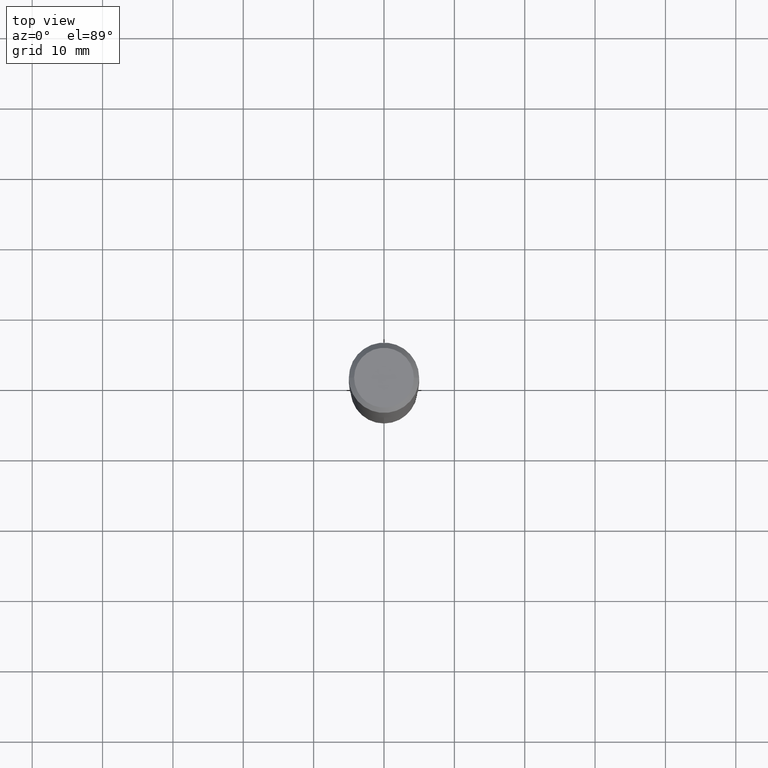
[diagram: clean part render]
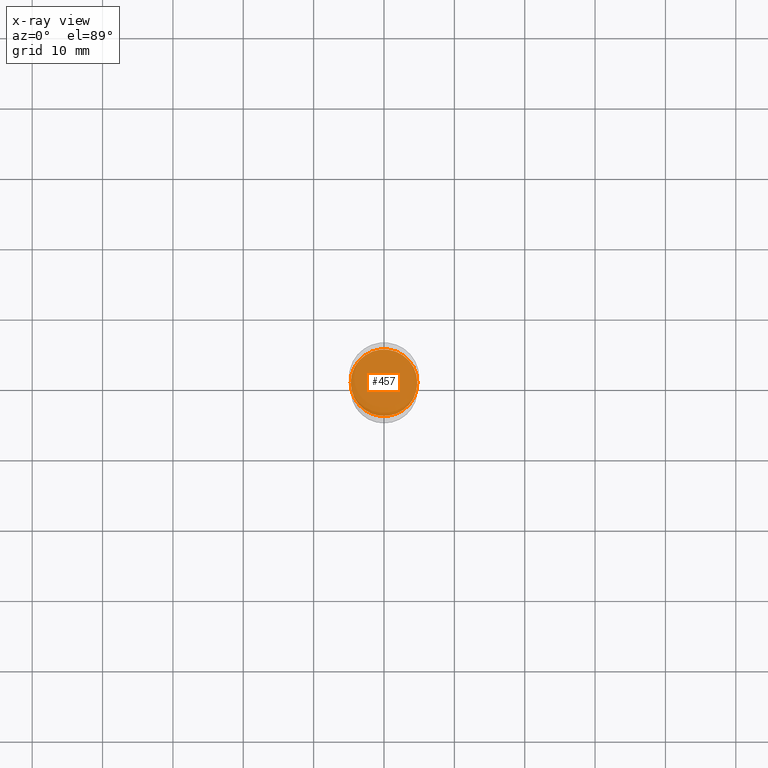
[diagram: x-ray — body ghosted, one internal face saturated and labeled with its STEP entity id]
A machine part, top view, then the same camera in x-ray: the body is ghosted and one INTERNAL B-rep face — a face not visible from any outside direction — is saturated and labeled: STEP entity #457.
In plain terms, the highlighted planar face has unit normal (-0, 0, 1).
Its self-contained STEP definition (entity closure, byte-faithful):
#4 = DIRECTION ( 'NONE',  ( 1.000000000000000000, -6.982962677686265922E-15, 4.876176775795935793E-29 ) ) ;
#40 = PLANE ( 'NONE',  #266 ) ;
#58 = VERTEX_POINT ( 'NONE', #196 ) ;
#66 = CARTESIAN_POINT ( 'NONE',  ( 4.043338124146504977E-29, -5.772815245643255982E-15, -1.653399999999999981 ) ) ;
#71 = AXIS2_PLACEMENT_3D ( 'NONE', #392, #355, #276 ) ;
#73 = DIRECTION ( 'NONE',  ( -2.445468806185136597E-29, 3.491481338843145583E-15, 1.000000000000000000 ) ) ;
#80 = EDGE_CURVE ( 'NONE', #244, #58, #463, .T. ) ;
#93 = CARTESIAN_POINT ( 'NONE',  ( 0.1864999999999999991, -7.075137785031744976E-15, -1.653399999999999981 ) ) ;
#99 = ORIENTED_EDGE ( 'NONE', *, *, #80, .F. ) ;
#122 = AXIS2_PLACEMENT_3D ( 'NONE', #66, #73, #300 ) ;
#196 = CARTESIAN_POINT ( 'NONE',  ( -0.1864999999999999991, -4.445003816276557941E-15, -1.653399999999999981 ) ) ;
#197 = EDGE_CURVE ( 'NONE', #58, #244, #208, .T. ) ;
#204 = EDGE_LOOP ( 'NONE', ( #99, #345 ) ) ;
#208 = CIRCLE ( 'NONE', #122, 0.1864999999999999991 ) ;
#244 = VERTEX_POINT ( 'NONE', #93 ) ;
#266 = AXIS2_PLACEMENT_3D ( 'NONE', #394, #349, #4 ) ;
#276 = DIRECTION ( 'NONE',  ( 1.000000000000000000, -6.982962677686268288E-15, 0.000000000000000000 ) ) ;
#300 = DIRECTION ( 'NONE',  ( 1.000000000000000000, -6.982962677686268288E-15, 0.000000000000000000 ) ) ;
#322 = FACE_OUTER_BOUND ( 'NONE', #204, .T. ) ;
#345 = ORIENTED_EDGE ( 'NONE', *, *, #197, .F. ) ;
#349 = DIRECTION ( 'NONE',  ( -2.438088387897960049E-29, 3.491481338843145188E-15, 1.000000000000000000 ) ) ;
#355 = DIRECTION ( 'NONE',  ( -2.445468806185136597E-29, 3.491481338843145583E-15, 1.000000000000000000 ) ) ;
#392 = CARTESIAN_POINT ( 'NONE',  ( 4.043338124146504977E-29, -5.772815245643255982E-15, -1.653399999999999981 ) ) ;
#394 = CARTESIAN_POINT ( 'NONE',  ( 2.352136649979754944E-29, -8.194712013860142362E-15, -1.653399999999999981 ) ) ;
#457 = ADVANCED_FACE ( 'NONE', ( #322 ), #40, .F. ) ;
#463 = CIRCLE ( 'NONE', #71, 0.1864999999999999991 ) ;